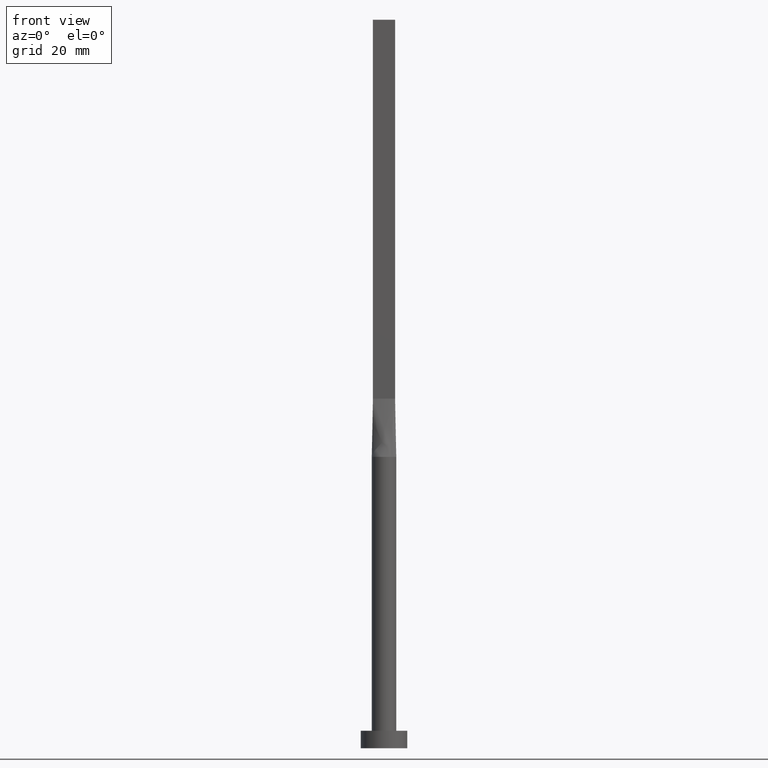
[diagram: clean part render]
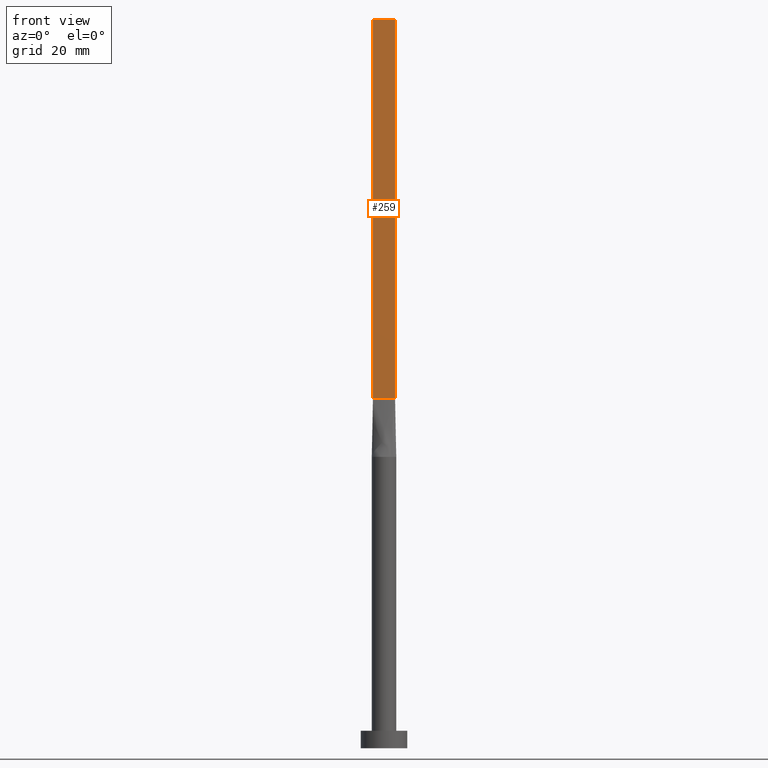
[diagram: same view with one face highlighted and labeled with its STEP entity id]
A machine part, front view. The second image highlights one B-rep face of the part: STEP entity #259.
In plain terms, the highlighted planar face has unit normal (0, 1, -0).
Its self-contained STEP definition (entity closure, byte-faithful):
#2 = DIRECTION ( 'NONE',  ( 7.132909029509899409E-17, 1.000000000000000000, -0.000000000000000000 ) ) ;
#7 = VECTOR ( 'NONE', #484, 1000.000000000000000 ) ;
#20 = ORIENTED_EDGE ( 'NONE', *, *, #386, .F. ) ;
#21 = VERTEX_POINT ( 'NONE', #143 ) ;
#33 = CARTESIAN_POINT ( 'NONE',  ( -1.899999999999999911, -0.2999999999999994893, 60.00000000000000711 ) ) ;
#46 = EDGE_LOOP ( 'NONE', ( #363, #20, #61, #314 ) ) ;
#50 = VERTEX_POINT ( 'NONE', #505 ) ;
#60 = AXIS2_PLACEMENT_3D ( 'NONE', #463, #2, #515 ) ;
#61 = ORIENTED_EDGE ( 'NONE', *, *, #290, .F. ) ;
#76 = EDGE_CURVE ( 'NONE', #156, #21, #507, .T. ) ;
#126 = VECTOR ( 'NONE', #558, 1000.000000000000000 ) ;
#143 = CARTESIAN_POINT ( 'NONE',  ( 1.899999999999999023, -0.2999999999999997669, 60.00000000000000711 ) ) ;
#145 = FACE_OUTER_BOUND ( 'NONE', #46, .T. ) ;
#154 = CARTESIAN_POINT ( 'NONE',  ( -1.899999999999999911, -0.2999999999999994893, 125.0000000000000000 ) ) ;
#155 = LINE ( 'NONE', #334, #495 ) ;
#156 = VERTEX_POINT ( 'NONE', #33 ) ;
#164 = DIRECTION ( 'NONE',  ( -0.000000000000000000, -0.000000000000000000, -1.000000000000000000 ) ) ;
#195 = VECTOR ( 'NONE', #164, 1000.000000000000000 ) ;
#202 = LINE ( 'NONE', #236, #195 ) ;
#236 = CARTESIAN_POINT ( 'NONE',  ( 1.899999999999999023, -0.2999999999999997669, 125.0000000000000000 ) ) ;
#256 = CARTESIAN_POINT ( 'NONE',  ( -1.899999999999999911, -0.2999999999999994893, 125.0000000000000000 ) ) ;
#259 = ADVANCED_FACE ( 'NONE', ( #145 ), #426, .F. ) ;
#275 = CARTESIAN_POINT ( 'NONE',  ( -1.899999999999999911, -0.2999999999999994893, 60.00000000000000711 ) ) ;
#290 = EDGE_CURVE ( 'NONE', #525, #50, #498, .T. ) ;
#314 = ORIENTED_EDGE ( 'NONE', *, *, #434, .T. ) ;
#334 = CARTESIAN_POINT ( 'NONE',  ( -1.899999999999999911, -0.2999999999999994893, 125.0000000000000000 ) ) ;
#363 = ORIENTED_EDGE ( 'NONE', *, *, #76, .T. ) ;
#386 = EDGE_CURVE ( 'NONE', #50, #21, #202, .T. ) ;
#426 = PLANE ( 'NONE',  #60 ) ;
#434 = EDGE_CURVE ( 'NONE', #525, #156, #155, .T. ) ;
#463 = CARTESIAN_POINT ( 'NONE',  ( -1.899999999999999911, -0.2999999999999994893, 125.0000000000000000 ) ) ;
#484 = DIRECTION ( 'NONE',  ( 1.000000000000000000, -7.132909029509898176E-17, 0.000000000000000000 ) ) ;
#495 = VECTOR ( 'NONE', #557, 1000.000000000000000 ) ;
#498 = LINE ( 'NONE', #154, #126 ) ;
#505 = CARTESIAN_POINT ( 'NONE',  ( 1.899999999999999023, -0.2999999999999997669, 125.0000000000000000 ) ) ;
#507 = LINE ( 'NONE', #275, #7 ) ;
#515 = DIRECTION ( 'NONE',  ( -1.000000000000000000, 7.132909029509899409E-17, 0.000000000000000000 ) ) ;
#525 = VERTEX_POINT ( 'NONE', #256 ) ;
#557 = DIRECTION ( 'NONE',  ( -0.000000000000000000, -0.000000000000000000, -1.000000000000000000 ) ) ;
#558 = DIRECTION ( 'NONE',  ( 1.000000000000000000, -7.132909029509899409E-17, 0.000000000000000000 ) ) ;